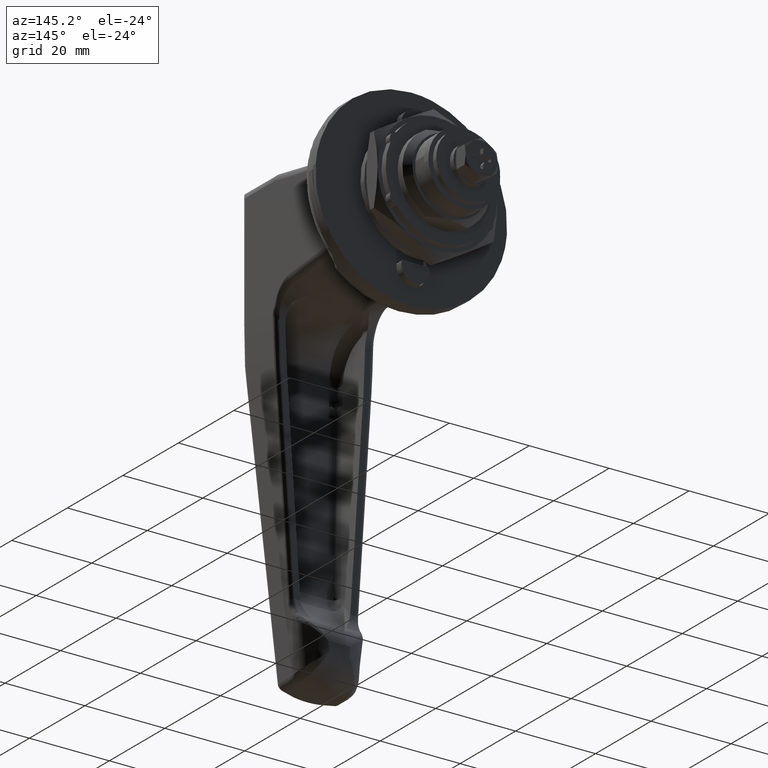
[diagram: clean part render]
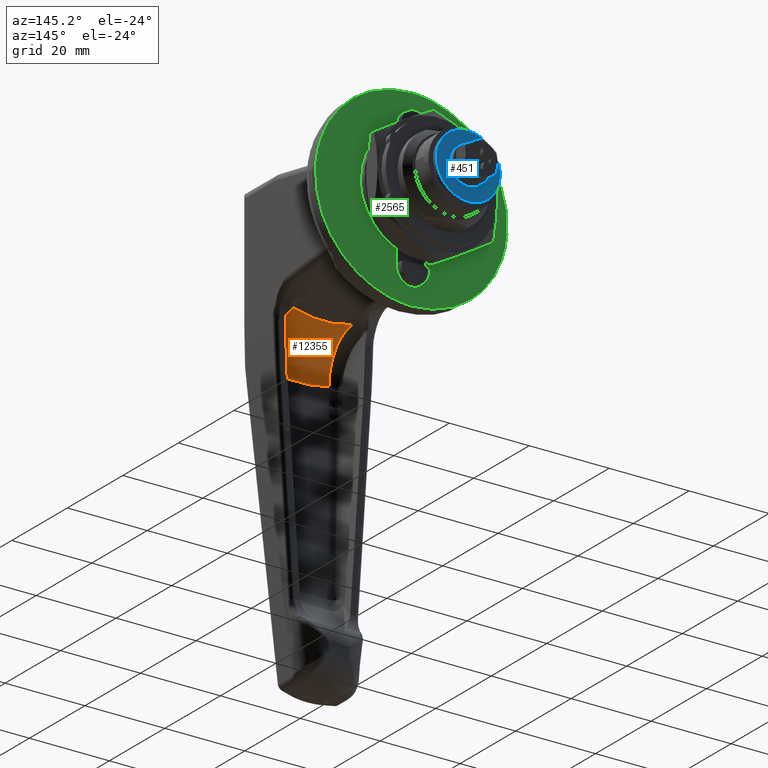
[diagram: same view with three faces highlighted in distinct colors, each labeled with its STEP entity id]
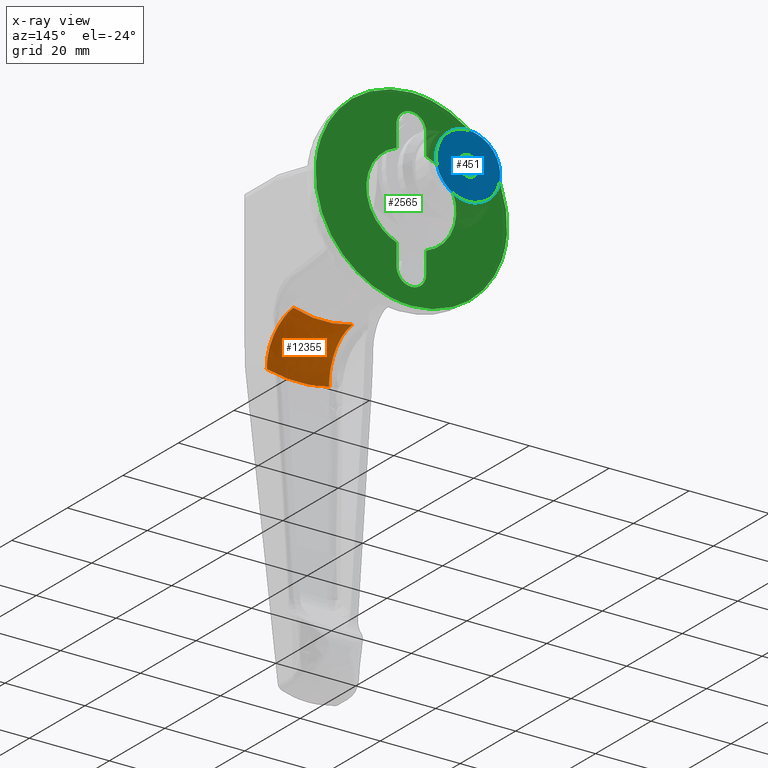
[diagram: x-ray of the same camera — body ghosted, the three highlighted faces saturated]
A machine part, auxiliary view with three faces highlighted in distinct colors.
The next image is the same camera in x-ray (body ghosted, the three faces saturated) — at least one of them is partly hidden behind the body in this view.
Their STEP definitions:

[orange] entity #12355 — the highlighted face is a freeform B-spline surface patch.
#11438=CARTESIAN_POINT('',(-40.825359756270203,7.827575260165380,-25.293235605889549));
#11439=VERTEX_POINT('',#11438);
#11621=CARTESIAN_POINT('',(-31.812009514778559,7.382904629250580,-14.667201120378699));
#11622=VERTEX_POINT('',#11621);
#11640=CARTESIAN_POINT('',(-31.812009514778559,7.382904629250580,-14.667201120378699));
#11641=CARTESIAN_POINT('',(-32.133748025032908,7.384489807200803,-14.698910938858999));
#11642=CARTESIAN_POINT('',(-32.452893654336158,7.387353203197884,-14.746466075777830));
#11643=CARTESIAN_POINT('',(-32.927745212893662,7.393484282610808,-14.841433966328911));
#11644=CARTESIAN_POINT('',(-33.085651579381157,7.395839267305465,-14.877113669601281));
#11645=CARTESIAN_POINT('',(-33.397947730221738,7.401107446914169,-14.955828373912381));
#11646=CARTESIAN_POINT('',(-33.552527738871888,7.404021976324473,-14.998886927158960));
#11647=CARTESIAN_POINT('',(-34.011660493838107,7.413557732517766,-15.138939544571040));
#11648=CARTESIAN_POINT('',(-34.311616371747512,7.420970683074084,-15.246785917218061));
#11649=CARTESIAN_POINT('',(-34.899512853283063,7.437659979636562,-15.490858250846420));
#11650=CARTESIAN_POINT('',(-35.187453090104349,7.446936584932174,-15.627085064576169));
#11651=CARTESIAN_POINT('',(-35.610290791524783,7.462071765562384,-15.852867100460101));
#11652=CARTESIAN_POINT('',(-35.749722048129321,7.467320268480792,-15.931707424468950));
#11653=CARTESIAN_POINT('',(-35.956565718970317,7.475476336115470,-16.055412983432198));
#11654=CARTESIAN_POINT('',(-36.025129570995759,7.478242245512692,-16.097556083338130));
#11655=CARTESIAN_POINT('',(-36.161481885362612,7.483864869517127,-16.183675704902811));
#11656=CARTESIAN_POINT('',(-36.229288932877758,7.486722589597034,-16.227668643211938));
#11657=CARTESIAN_POINT('',(-36.564454342788189,7.501144885537885,-16.450957154357429));
#11658=CARTESIAN_POINT('',(-36.821792194385537,7.513172345996725,-16.641162872783099));
#11659=CARTESIAN_POINT('',(-37.315731200964493,7.537876887151372,-17.043827132022109));
#11660=CARTESIAN_POINT('',(-37.788928392115579,7.563231616647651,-17.468749683063169));
#11661=CARTESIAN_POINT('',(-38.221165510195704,7.589289943401213,-17.937660644229808));
#11662=CARTESIAN_POINT('',(-38.529762867330078,7.608886046574647,-18.306088758561160));
#11663=CARTESIAN_POINT('',(-38.630027584359887,7.615426904820508,-18.431693585534660));
#11664=CARTESIAN_POINT('',(-38.825263405736870,7.628491681301183,-18.688594486295340));
#11665=CARTESIAN_POINT('',(-38.919653336464982,7.634976988159669,-18.819141047107571));
#11666=CARTESIAN_POINT('',(-39.192323352888288,7.654175413162426,-19.215521935118041));
#11667=CARTESIAN_POINT('',(-39.360585743940639,7.666660948034870,-19.486687276367729));
#11668=CARTESIAN_POINT('',(-39.826027686843616,7.702857741249795,-20.320314324537630));
#11669=CARTESIAN_POINT('',(-40.084205256252048,7.725305788378004,-20.902732021766521));
#11670=CARTESIAN_POINT('',(-40.340472851320172,7.750319320942486,-21.664793182635879));
#11671=CARTESIAN_POINT('',(-40.388468110409342,7.755180365205800,-21.819289494177919));
#11672=CARTESIAN_POINT('',(-40.476800535213073,7.764487675588184,-22.128777429865220));
#11673=CARTESIAN_POINT('',(-40.517236545612292,7.768942758642565,-22.284006515481519));
#11674=CARTESIAN_POINT('',(-40.627569131652571,7.781704699558923,-22.751121544042721));
#11675=CARTESIAN_POINT('',(-40.686514134808917,7.789408113560496,-23.064432183591180));
#11676=CARTESIAN_POINT('',(-40.820325590466759,7.810050877222581,-24.009963097523780));
#11677=CARTESIAN_POINT('',(-40.852558041922137,7.820522986583554,-24.647732136243441));
#11678=CARTESIAN_POINT('',(-40.825359756270203,7.827575260165380,-25.293235605889549));
#11679=B_SPLINE_CURVE_WITH_KNOTS('',3,(#11640,#11641,#11642,#11643,#11644,#11645,#11646,#11647,#11648,#11649,#11650,#11651,#11652,#11653,#11654,#11655,#11656,#11657,#11658,#11659,#11660,#11661,#11662,#11663,#11664,#11665,#11666,#11667,#11668,#11669,#11670,#11671,#11672,#11673,#11674,#11675,#11676,#11677,#11678),.UNSPECIFIED.,.F.,.U.,(4,2,2,2,2,2,2,2,2,2,1,2,2,2,2,2,2,2,2,4),(0.0,0.062499999999999,0.093749999999999,0.124999999999998,0.187499999999997,0.249999999999997,0.281249999999996,0.296874999999996,0.312499999999997,0.374999999999997,0.437499999999997,0.499999999999997,0.531249999999997,0.562499999999997,0.624999999999998,0.749999999999999,0.781249999999999,0.812500000000000,0.875000000000000,1.0),.UNSPECIFIED.);
#11680=EDGE_CURVE('',#11622,#11439,#11679,.T.);
#11949=CARTESIAN_POINT('',(-40.825359756270203,-7.827575260165410,-25.293235605889549));
#11950=VERTEX_POINT('',#11949);
#12132=CARTESIAN_POINT('',(-31.812009514778701,-7.382904629259170,-14.667201120375919));
#12133=VERTEX_POINT('',#12132);
#12188=CARTESIAN_POINT('',(-40.825359756270252,-7.827575260165362,-25.293235605889549));
#12189=CARTESIAN_POINT('',(-40.852529589947871,-7.820530363926583,-24.648407393807950));
#12190=CARTESIAN_POINT('',(-40.820566202609633,-7.810024875115288,-24.006983623195779));
#12191=CARTESIAN_POINT('',(-40.706864501845743,-7.792563958881102,-23.209449950297842));
#12192=CARTESIAN_POINT('',(-40.680398518596917,-7.788856032422538,-23.050239457069939));
#12193=CARTESIAN_POINT('',(-40.620489413005473,-7.781076245812965,-22.734825041231069));
#12194=CARTESIAN_POINT('',(-40.587003924303197,-7.776997510125772,-22.578296538648949));
#12195=CARTESIAN_POINT('',(-40.476099469983687,-7.764217295472520,-22.112198324796289));
#12196=CARTESIAN_POINT('',(-40.300410775494612,-7.745725887881040,-21.500018489191589));
#12197=CARTESIAN_POINT('',(-40.069509277954729,-7.724577967341402,-20.906260329578298));
#12198=CARTESIAN_POINT('',(-39.875234680183937,-7.707820083251415,-20.467977362084540));
#12199=CARTESIAN_POINT('',(-39.806954206058933,-7.702084763393725,-20.323057590877770));
#12200=CARTESIAN_POINT('',(-39.663209075309503,-7.690333621747667,-20.035612932426130));
#12201=CARTESIAN_POINT('',(-39.587580160200133,-7.684305629135382,-19.892824987707488));
#12202=CARTESIAN_POINT('',(-39.352011862245106,-7.666012022334219,-19.472225588536450));
#12203=CARTESIAN_POINT('',(-39.013776248275363,-7.640971663054387,-18.929774417885181));
#12204=CARTESIAN_POINT('',(-38.628162453240513,-7.615126729444379,-18.423303502030588));
#12205=CARTESIAN_POINT('',(-38.218672616583383,-7.589139521408146,-17.934951453087379));
#12206=CARTESIAN_POINT('',(-38.001992289595151,-7.576074513967380,-17.699832893952919));
#12207=CARTESIAN_POINT('',(-37.658430348534452,-7.556585735111536,-17.361214623862139));
#12208=CARTESIAN_POINT('',(-37.540669661765172,-7.550101282602617,-17.250588624770050));
#12209=CARTESIAN_POINT('',(-37.301341434045753,-7.537340881482384,-17.036342153163449));
#12210=CARTESIAN_POINT('',(-37.179494773899123,-7.531048574052822,-16.932432329714050));
#12211=CARTESIAN_POINT('',(-36.807485859982407,-7.512488047776656,-16.630223664007111));
#12212=CARTESIAN_POINT('',(-36.550869059587612,-7.500535755956782,-16.441424437285129));
#12213=CARTESIAN_POINT('',(-36.020477712203181,-7.477762918481962,-16.089059701908312));
#12214=CARTESIAN_POINT('',(-35.746703908397670,-7.466941996615193,-15.925493121059951));
#12215=CARTESIAN_POINT('',(-35.322869990756907,-7.451790204280999,-15.699503562191421));
#12216=CARTESIAN_POINT('',(-35.179392752995220,-7.446919724401992,-15.627405917310741));
#12217=CARTESIAN_POINT('',(-34.960803630721607,-7.439915210426696,-15.524215473342689));
#12218=CARTESIAN_POINT('',(-34.887356229436541,-7.437630158531755,-15.490638918098300));
#12219=CARTESIAN_POINT('',(-34.740132323526922,-7.433189455524685,-15.425506321668131));
#12220=CARTESIAN_POINT('',(-34.666257600961693,-7.431030580464496,-15.393902695791519));
#12221=CARTESIAN_POINT('',(-34.295581825297610,-7.420550188288139,-15.240654497719520));
#12222=CARTESIAN_POINT('',(-33.694185004563678,-7.405791106692171,-15.025917747682319));
#12223=CARTESIAN_POINT('',(-33.076457366212701,-7.395388863716572,-14.870974272612200));
#12224=CARTESIAN_POINT('',(-32.450489676995062,-7.387337990345618,-14.746190548579550));
#12225=CARTESIAN_POINT('',(-32.133386690216277,-7.384488026935276,-14.698875326518269));
#12226=CARTESIAN_POINT('',(-31.812009514778801,-7.382904629259170,-14.667201120375919));
#12227=B_SPLINE_CURVE_WITH_KNOTS('',3,(#12188,#12189,#12190,#12191,#12192,#12193,#12194,#12195,#12196,#12197,#12198,#12199,#12200,#12201,#12202,#12203,#12204,#12205,#12206,#12207,#12208,#12209,#12210,#12211,#12212,#12213,#12214,#12215,#12216,#12217,#12218,#12219,#12220,#12221,#12222,#12223,#12224,#12225,#12226),.UNSPECIFIED.,.F.,.U.,(4,2,2,2,1,2,2,2,1,2,2,2,2,2,2,2,2,2,1,2,4),(0.0,0.124999999999997,0.156249999999995,0.187499999999994,0.249999999999992,0.312499999999990,0.343749999999990,0.374999999999989,0.437499999999989,0.499999999999989,0.562499999999989,0.593749999999990,0.624999999999990,0.687499999999993,0.749999999999995,0.781249999999997,0.796874999999997,0.812499999999997,0.874999999999998,0.937499999999999,1.0),.UNSPECIFIED.);
#12228=EDGE_CURVE('',#11950,#12133,#12227,.T.);
#12233=CARTESIAN_POINT('',(-31.745413127194460,-7.466910346608826,-14.632988686826209));
#12234=CARTESIAN_POINT('',(-31.724110247814927,-6.269361143150593,-15.025938892908698));
#12235=CARTESIAN_POINT('',(-31.705648072891712,-5.046605697200515,-15.322867648962948));
#12236=CARTESIAN_POINT('',(-31.686454721669563,-3.174404503301943,-15.623335010354468));
#12237=CARTESIAN_POINT('',(-31.681452593555466,-2.543959755078718,-15.699225344157483));
#12238=CARTESIAN_POINT('',(-31.674708495164762,-1.269877287298596,-15.800878503471518));
#12239=CARTESIAN_POINT('',(-31.673014686084937,-0.634969448344535,-15.825937090082043));
#12240=CARTESIAN_POINT('',(-31.673001953662030,1.262753615766429,-15.826126644884132));
#12241=CARTESIAN_POINT('',(-31.679836673225946,2.518980766109065,-15.726765434138391));
#12242=CARTESIAN_POINT('',(-31.698868849589584,4.390079119513899,-15.429078215003674));
#12243=CARTESIAN_POINT('',(-31.706654999843270,5.011560822176806,-15.304958244633401));
#12244=CARTESIAN_POINT('',(-31.724583142816940,6.249976905533970,-15.005564243479506));
#12245=CARTESIAN_POINT('',(-31.734735866183637,6.866714107493562,-14.829945146791250));
#12246=CARTESIAN_POINT('',(-31.745422154236927,7.467417784104113,-14.632822175750203));
#12247=CARTESIAN_POINT('',(-31.779416094032591,-7.467538683560845,-14.636191437893576));
#12248=CARTESIAN_POINT('',(-31.758175238959851,-6.269852999306590,-15.029170280593137));
#12249=CARTESIAN_POINT('',(-31.739762948059880,-5.046983561752350,-15.326110910100212));
#12250=CARTESIAN_POINT('',(-31.720620577980018,-3.174630888114090,-15.626587917045033));
#12251=CARTESIAN_POINT('',(-31.715631507305734,-2.544138827765635,-15.702480011157318));
#12252=CARTESIAN_POINT('',(-31.708904937065864,-1.269964741744247,-15.804135328474372));
#12253=CARTESIAN_POINT('',(-31.707215489808132,-0.635013173653010,-15.829194308349683));
#12254=CARTESIAN_POINT('',(-31.707202790255774,1.262840571514010,-15.829383866479770));
#12255=CARTESIAN_POINT('',(-31.714020034317954,2.519154464758785,-15.730021603928133));
#12256=CARTESIAN_POINT('',(-31.733001767981417,4.390403698218419,-15.432324913346566));
#12257=CARTESIAN_POINT('',(-31.740767027929646,5.011939197499494,-15.308200329189669));
#12258=CARTESIAN_POINT('',(-31.758645808037638,6.250472897597136,-15.008791568946252));
#12259=CARTESIAN_POINT('',(-31.768769961042420,6.867273992469793,-14.833162262643890));
#12260=CARTESIAN_POINT('',(-31.779425094701590,7.468046178939694,-14.636024914671928));
#12261=CARTESIAN_POINT('',(-41.197931225763632,-7.641582352119719,-15.523324597029683));
#12262=CARTESIAN_POINT('',(-41.209415773790340,-6.406317172131024,-15.925710136922699));
#12263=CARTESIAN_POINT('',(-41.217306187733158,-5.151959107202378,-16.227129820896508));
#12264=CARTESIAN_POINT('',(-41.225146043869849,-3.237608388007852,-16.531506974183610));
#12265=CARTESIAN_POINT('',(-41.227078634590654,-2.593971903386698,-16.608201980910923));
#12266=CARTESIAN_POINT('',(-41.229654358134177,-1.294313235812898,-16.710879218676009));
#12267=CARTESIAN_POINT('',(-41.230279881593411,-0.647188294785328,-16.736152505936769));
#12268=CARTESIAN_POINT('',(-41.230284637576432,1.287053040675328,-16.736343781481885));
#12269=CARTESIAN_POINT('',(-41.227841304224640,2.567497806532322,-16.636270036334384));
#12270=CARTESIAN_POINT('',(-41.220079123064657,4.480618758128046,-16.334728803164101));
#12271=CARTESIAN_POINT('',(-41.216797127755420,5.117048630973297,-16.208823732861500));
#12272=CARTESIAN_POINT('',(-41.208607463121687,6.388075341439732,-15.904144346294039));
#12273=CARTESIAN_POINT('',(-41.203687663502699,7.022485074049665,-15.725009788924613));
#12274=CARTESIAN_POINT('',(-41.197926359292943,7.642105759456569,-15.523154091510527));
#12275=CARTESIAN_POINT('',(-40.856989256808617,-10.597467523847474,-24.505120978755450));
#12276=CARTESIAN_POINT('',(-40.834557998794587,-8.898033464105239,-25.093492710154152));
#12277=CARTESIAN_POINT('',(-40.815117012671436,-7.162684484655468,-25.538212050235860));
#12278=CARTESIAN_POINT('',(-40.794905955309275,-4.505519798013812,-25.988254006263439));
#12279=CARTESIAN_POINT('',(-40.789638543638709,-3.610725998454679,-26.101930923565536));
#12280=CARTESIAN_POINT('',(-40.782536749177261,-1.802390345118244,-26.254200479620351));
#12281=CARTESIAN_POINT('',(-40.780753097742164,-0.901238784050039,-26.291738197785630));
#12282=CARTESIAN_POINT('',(-40.780739689968200,1.792279195564273,-26.292022146326293));
#12283=CARTESIAN_POINT('',(-40.787936927015025,3.575295000907547,-26.143172997785662));
#12284=CARTESIAN_POINT('',(-40.807978360729770,6.230893783234150,-25.697294814499095));
#12285=CARTESIAN_POINT('',(-40.816177318185666,7.112925793318444,-25.511394457567629));
#12286=CARTESIAN_POINT('',(-40.835055721911147,8.870481814776657,-25.063020328786479));
#12287=CARTESIAN_POINT('',(-40.845746314182755,9.745720099918133,-24.800032077623072));
#12288=CARTESIAN_POINT('',(-40.856998761964256,10.598187631818433,-24.504871656181962));
#12289=CARTESIAN_POINT('',(-40.855757546989480,-10.608146152827425,-24.537569218643544));
#12290=CARTESIAN_POINT('',(-40.833205989894630,-8.907020399491298,-25.126558380545450));
#12291=CARTESIAN_POINT('',(-40.813668334388439,-7.169927081841084,-25.571750403461731));
#12292=CARTESIAN_POINT('',(-40.793358328290168,-4.510080632785179,-26.022271099530016));
#12293=CARTESIAN_POINT('',(-40.788065561475207,-3.614382124377488,-26.136069235532741));
#12294=CARTESIAN_POINT('',(-40.780929714991167,-1.804216480496222,-26.288501171894875));
#12295=CARTESIAN_POINT('',(-40.779137591204332,-0.902151789105794,-26.326079001743960));
#12296=CARTESIAN_POINT('',(-40.779124119562127,1.794094872569564,-26.326363253391133));
#12297=CARTESIAN_POINT('',(-40.786355272540838,3.578918485974184,-26.177354598114615));
#12298=CARTESIAN_POINT('',(-40.806494688534244,6.237195238185495,-25.731002538772792));
#12299=CARTESIAN_POINT('',(-40.814734182753405,7.120115455393747,-25.544904706196171));
#12300=CARTESIAN_POINT('',(-40.833708333187843,8.879435772474464,-25.096056090249210));
#12301=CARTESIAN_POINT('',(-40.844454257625522,9.755550128437678,-24.832790075763516));
#12302=CARTESIAN_POINT('',(-40.855767103206936,10.608866978852699,-24.537319633937116));
#12310=(BOUNDED_SURFACE()B_SPLINE_SURFACE(3,2,((#12233,#12247,#12261,#12275,#12289),(#12234,#12248,#12262,#12276,#12290),(#12235,#12249,#12263,#12277,#12291),(#12236,#12250,#12264,#12278,#12292),(#12237,#12251,#12265,#12279,#12293),(#12238,#12252,#12266,#12280,#12294),(#12239,#12253,#12267,#12281,#12295),(#12240,#12254,#12268,#12282,#12296),(#12241,#12255,#12269,#12283,#12297),(#12242,#12256,#12270,#12284,#12298),(#12243,#12257,#12271,#12285,#12299),(#12244,#12258,#12272,#12286,#12300),(#12245,#12259,#12273,#12287,#12301),(#12246,#12260,#12274,#12288,#12302)),.UNSPECIFIED.,.F.,.F.,.U.)B_SPLINE_SURFACE_WITH_KNOTS((4,2,2,2,2,2,4),(3,1,1,3),(0.0,5.449651486164336,8.174477229246504,10.899302972328670,16.348954458493012,19.073780201575179,21.798605944657339),(0.0,0.080043975375321,16.088718683535170,16.168817203720600),.UNSPECIFIED.)GEOMETRIC_REPRESENTATION_ITEM()RATIONAL_B_SPLINE_SURFACE(((1.002723755867685,1.001361877933842,0.727626461168698,1.001362805965876,1.002725611931753),(1.002735637746444,1.001367818873222,0.726438282226496,1.001368750953623,1.002737501907247),(1.002745121518396,1.001372560759198,0.725489912161955,1.001373496070889,1.002746992141778),(1.002754836286093,1.001377418143047,0.724518442696547,1.001378356764732,1.002756713529464),(1.002757323861087,1.001378661930544,0.724269687067513,1.001379601399790,1.002759202799580),(1.002760665591508,1.001380332795754,0.723935516537999,1.001381273403587,1.002762546807174),(1.002761496253984,1.001380748126992,0.723852450914965,1.001381689017847,1.002763378035693),(1.002761502519844,1.001380751259922,0.723851824333672,1.001381692152912,1.002763384305823),(1.002758182874257,1.001379091437128,0.724183786396455,1.001380031199056,1.002760062398111),(1.002748554357509,1.001374277178755,0.725146630831716,1.001375213660075,1.002750427320150),(1.002744572577831,1.001372286288915,0.725544805805737,1.001373221413573,1.002746442827145),(1.002735154216512,1.001367577108256,0.726486634856114,1.001368509023910,1.002737018047821),(1.002729713002993,1.001364856501497,0.727030752116877,1.001365786563233,1.002731573126465),(1.002723750834741,1.001361875417371,0.727626964459243,1.001362803447690,1.002725606895380)))REPRESENTATION_ITEM('')SURFACE());
#12311=CARTESIAN_POINT('',(-31.812009514778591,7.382904629250580,-14.667201120378699));
#12312=CARTESIAN_POINT('',(-31.806754729762591,7.083561595264651,-14.764173418831991));
#12313=CARTESIAN_POINT('',(-31.801664824974068,6.782123492833700,-14.855295260424990));
#12314=CARTESIAN_POINT('',(-31.791922105842609,6.175033660008601,-15.025777787178001));
#12315=CARTESIAN_POINT('',(-31.787266927986479,5.869146148828927,-15.105172804853099));
#12316=CARTESIAN_POINT('',(-31.774185888687580,4.951249677149717,-15.324203266812340));
#12317=CARTESIAN_POINT('',(-31.766617837985141,4.337089586829030,-15.445299844357841));
#12318=CARTESIAN_POINT('',(-31.754289758865841,3.104422969221807,-15.638930200425120));
#12319=CARTESIAN_POINT('',(-31.744768241348751,1.867409462973651,-15.783992602001261));
#12320=CARTESIAN_POINT('',(-31.741500866108598,0.621760089024332,-15.832608275277259));
#12321=CARTESIAN_POINT('',(-31.741512180908821,-0.628258146861777,-15.832438940986689));
#12322=CARTESIAN_POINT('',(-31.743157609624070,-1.255451418622431,-15.807964904282670));
#12323=CARTESIAN_POINT('',(-31.749709488377029,-2.514341976014428,-15.708715245472630));
#12324=CARTESIAN_POINT('',(-31.754571333677230,-3.137626720459240,-15.634594284686941));
#12325=CARTESIAN_POINT('',(-31.767016417959869,-4.371608466077708,-15.438948078075351));
#12326=CARTESIAN_POINT('',(-31.782183722813858,-5.593224120579549,-15.195873765312321));
#12327=CARTESIAN_POINT('',(-31.801609044564341,-6.790433519717006,-14.859132378954151));
#12328=CARTESIAN_POINT('',(-31.812009514778701,-7.382904629259167,-14.667201120375919));
#12329=B_SPLINE_CURVE_WITH_KNOTS('',3,(#12311,#12312,#12313,#12314,#12315,#12316,#12317,#12318,#12319,#12320,#12321,#12322,#12323,#12324,#12325,#12326,#12327,#12328),.UNSPECIFIED.,.F.,.U.,(4,2,2,2,1,2,2,2,1,4),(0.0,0.062500000000000,0.125000000000000,0.250000000000000,0.375000000000000,0.500000000000000,0.625000000000000,0.750000000000000,0.875000000000000,1.0),.UNSPECIFIED.);
#12330=EDGE_CURVE('',#11622,#12133,#12329,.T.);
#12331=ORIENTED_EDGE('',*,*,#12330,.T.);
#12332=ORIENTED_EDGE('',*,*,#12228,.F.);
#12333=CARTESIAN_POINT('',(-40.825359756270238,-7.827575260165406,-25.293235605889539));
#12334=CARTESIAN_POINT('',(-40.811821056672500,-6.541401968867144,-25.614552827007490));
#12335=CARTESIAN_POINT('',(-40.800890084982463,-5.239368933864738,-25.856399372553941));
#12336=CARTESIAN_POINT('',(-40.791637335939619,-3.591783461792982,-26.058317111665708));
#12337=CARTESIAN_POINT('',(-40.790005285524792,-3.261260899970748,-26.093664698832612));
#12338=CARTESIAN_POINT('',(-40.787900479235823,-2.763954748277005,-26.139062011897110));
#12339=CARTESIAN_POINT('',(-40.787255811372653,-2.597838836986929,-26.152928938989710));
#12340=CARTESIAN_POINT('',(-40.786086432416219,-2.266119183551184,-26.178035985243351));
#12341=CARTESIAN_POINT('',(-40.785561199463750,-2.100407814418808,-26.189287395123479));
#12342=CARTESIAN_POINT('',(-40.783233168652913,-1.272587180466305,-26.239087313181660));
#12343=CARTESIAN_POINT('',(-40.782326945280218,-0.612684455747640,-26.258282931713190));
#12344=CARTESIAN_POINT('',(-40.782456366829130,1.360143966317092,-26.255531838215180));
#12345=CARTESIAN_POINT('',(-40.786365682164210,2.666212698403283,-26.173448525853068));
#12346=CARTESIAN_POINT('',(-40.801084470493237,5.260426605302539,-25.852063459370441));
#12347=CARTESIAN_POINT('',(-40.811896528344640,6.548571760047144,-25.612761639619642));
#12348=CARTESIAN_POINT('',(-40.825359756270238,7.827575260165377,-25.293235605889539));
#12349=B_SPLINE_CURVE_WITH_KNOTS('',3,(#12333,#12334,#12335,#12336,#12337,#12338,#12339,#12340,#12341,#12342,#12343,#12344,#12345,#12346,#12347,#12348),.UNSPECIFIED.,.F.,.U.,(4,2,2,2,2,2,2,4),(0.0,0.250000000000000,0.312500000000000,0.343750000000000,0.375000000000000,0.500000000000000,0.750000000000000,1.0),.UNSPECIFIED.);
#12350=EDGE_CURVE('',#11950,#11439,#12349,.T.);
#12351=ORIENTED_EDGE('',*,*,#12350,.T.);
#12352=ORIENTED_EDGE('',*,*,#11680,.F.);
#12353=EDGE_LOOP('',(#12331,#12332,#12351,#12352));
#12354=FACE_OUTER_BOUND('',#12353,.T.);
#12355=ADVANCED_FACE('',(#12354),#12310,.F.);

[blue] entity #451 — the highlighted face is a freeform B-spline surface patch.
#85=CARTESIAN_POINT('',(125.096787000000010,7.944076210905161,0.944273877289150));
#86=VERTEX_POINT('',#85);
#92=CARTESIAN_POINT('',(125.096787000000010,0.0,-8.0));
#93=VERTEX_POINT('',#92);
#94=CARTESIAN_POINT('',(125.096787000000010,7.944076210905161,0.944273877289150));
#95=CARTESIAN_POINT('',(125.096786999999980,8.0,0.473792957250734));
#96=CARTESIAN_POINT('',(125.096787000000010,8.0,0.0));
#97=CARTESIAN_POINT('',(125.096786999999990,8.0,-8.0));
#98=CARTESIAN_POINT('',(125.096787000000010,0.0,-8.0));
#106=(BOUNDED_CURVE()B_SPLINE_CURVE(2,(#94,#95,#96,#97,#98),.UNSPECIFIED.,.F.,.U.)B_SPLINE_CURVE_WITH_KNOTS((3,2,3),(0.229562473514151,0.250000000000000,0.500000000000000),.UNSPECIFIED.)CURVE()GEOMETRIC_REPRESENTATION_ITEM()RATIONAL_B_SPLINE_CURVE((0.956026754184960,0.976055948331899,1.0,0.707106781186548,1.0))REPRESENTATION_ITEM(''));
#107=EDGE_CURVE('',#86,#93,#106,.T.);
#109=CARTESIAN_POINT('',(125.096787000000010,-7.985078387357856,-0.488388316558104));
#110=VERTEX_POINT('',#109);
#111=CARTESIAN_POINT('',(125.096787000000010,0.0,-8.0));
#112=CARTESIAN_POINT('',(125.096786999999980,-7.525648534718171,-8.0));
#113=CARTESIAN_POINT('',(125.096787000000020,-7.985078387357857,-0.488388316558104));
#121=(BOUNDED_CURVE()B_SPLINE_CURVE(2,(#111,#112,#113),.UNSPECIFIED.,.F.,.U.)B_SPLINE_CURVE_WITH_KNOTS((3,3),(0.500000000000000,0.739332962229899),.UNSPECIFIED.)CURVE()GEOMETRIC_REPRESENTATION_ITEM()RATIONAL_B_SPLINE_CURVE((1.0,0.719603993297306,0.976072041647335))REPRESENTATION_ITEM(''));
#122=EDGE_CURVE('',#93,#110,#121,.T.);
#196=CARTESIAN_POINT('',(125.096787000000010,0.0,8.0));
#197=VERTEX_POINT('',#196);
#198=CARTESIAN_POINT('',(125.096787000000030,-7.985078387357856,-0.488388316558104));
#199=CARTESIAN_POINT('',(125.096786999999990,-8.0,-0.244422106668742));
#200=CARTESIAN_POINT('',(125.096787000000010,-8.0,0.0));
#201=CARTESIAN_POINT('',(125.096786999999990,-8.0,8.0));
#202=CARTESIAN_POINT('',(125.096787000000010,0.0,8.0));
#210=(BOUNDED_CURVE()B_SPLINE_CURVE(2,(#198,#199,#200,#201,#202),.UNSPECIFIED.,.F.,.U.)B_SPLINE_CURVE_WITH_KNOTS((3,2,3),(0.739332962229900,0.750000000000000,1.0),.UNSPECIFIED.)CURVE()GEOMETRIC_REPRESENTATION_ITEM()RATIONAL_B_SPLINE_CURVE((0.976072041647337,0.987502787889243,1.0,0.707106781186548,1.0))REPRESENTATION_ITEM(''));
#211=EDGE_CURVE('',#110,#197,#210,.T.);
#213=CARTESIAN_POINT('',(125.096787000000010,0.0,8.0));
#214=CARTESIAN_POINT('',(125.096786999999990,7.105396207547743,8.0));
#215=CARTESIAN_POINT('',(125.096786999999990,7.944076210905161,0.944273877289150));
#223=(BOUNDED_CURVE()B_SPLINE_CURVE(2,(#213,#214,#215),.UNSPECIFIED.,.F.,.U.)B_SPLINE_CURVE_WITH_KNOTS((3,3),(0.0,0.229562473514152),.UNSPECIFIED.)CURVE()GEOMETRIC_REPRESENTATION_ITEM()RATIONAL_B_SPLINE_CURVE((1.0,0.731050832854649,0.956026754184960))REPRESENTATION_ITEM(''));
#224=EDGE_CURVE('',#197,#86,#223,.T.);
#286=CARTESIAN_POINT('',(125.096787000000010,-2.495336996046119,-0.152621348976916));
#287=VERTEX_POINT('',#286);
#293=CARTESIAN_POINT('',(125.096787000000010,0.0,-2.500000000000000));
#294=VERTEX_POINT('',#293);
#295=CARTESIAN_POINT('',(125.096787000000010,0.0,-2.500000000000000));
#296=CARTESIAN_POINT('',(125.096786999999990,-2.351765167000279,-2.500000000000000));
#297=CARTESIAN_POINT('',(125.096787000000020,-2.495336996046118,-0.152621348976916));
#305=(BOUNDED_CURVE()B_SPLINE_CURVE(2,(#295,#296,#297),.UNSPECIFIED.,.F.,.U.)B_SPLINE_CURVE_WITH_KNOTS((3,3),(0.500000000000000,0.739332962222638),.UNSPECIFIED.)CURVE()GEOMETRIC_REPRESENTATION_ITEM()RATIONAL_B_SPLINE_CURVE((1.0,0.719603993305812,0.976072041631773))REPRESENTATION_ITEM(''));
#306=EDGE_CURVE('',#294,#287,#305,.T.);
#308=CARTESIAN_POINT('',(125.096787000000010,2.482524083609847,0.295083334486963));
#309=VERTEX_POINT('',#308);
#310=CARTESIAN_POINT('',(125.096787000000030,2.482524083609847,0.295083334486963));
#311=CARTESIAN_POINT('',(125.096787000000010,2.500000000000000,0.148059161147715));
#312=CARTESIAN_POINT('',(125.096787000000010,2.500000000000000,0.0));
#313=CARTESIAN_POINT('',(125.096786999999990,2.500000000000000,-2.500000000000000));
#314=CARTESIAN_POINT('',(125.096787000000010,0.0,-2.500000000000000));
#322=(BOUNDED_CURVE()B_SPLINE_CURVE(2,(#310,#311,#312,#313,#314),.UNSPECIFIED.,.F.,.U.)B_SPLINE_CURVE_WITH_KNOTS((3,2,3),(0.229562626836035,0.250000000000000,0.500000000000000),.UNSPECIFIED.)CURVE()GEOMETRIC_REPRESENTATION_ITEM()RATIONAL_B_SPLINE_CURVE((0.956027054702347,0.976056127959659,1.0,0.707106781186548,1.0))REPRESENTATION_ITEM(''));
#323=EDGE_CURVE('',#309,#294,#322,.T.);
#367=CARTESIAN_POINT('',(125.096787000000010,0.0,2.500000000000000));
#368=VERTEX_POINT('',#367);
#369=CARTESIAN_POINT('',(125.096787000000010,0.0,2.500000000000000));
#370=CARTESIAN_POINT('',(125.096786999999990,2.220438343447841,2.500000000000000));
#371=CARTESIAN_POINT('',(125.096787000000030,2.482524083609847,0.295083334486963));
#379=(BOUNDED_CURVE()B_SPLINE_CURVE(2,(#369,#370,#371),.UNSPECIFIED.,.F.,.U.)B_SPLINE_CURVE_WITH_KNOTS((3,3),(0.0,0.229562626836035),.UNSPECIFIED.)CURVE()GEOMETRIC_REPRESENTATION_ITEM()RATIONAL_B_SPLINE_CURVE((1.0,0.731050653226889,0.956027054702347))REPRESENTATION_ITEM(''));
#380=EDGE_CURVE('',#368,#309,#379,.T.);
#382=CARTESIAN_POINT('',(125.096786999999990,-2.495336996046119,-0.152621348976916));
#383=CARTESIAN_POINT('',(125.096786999999990,-2.500000000000000,-0.076381908386638));
#384=CARTESIAN_POINT('',(125.096787000000010,-2.500000000000000,0.0));
#385=CARTESIAN_POINT('',(125.096786999999990,-2.500000000000000,2.500000000000000));
#386=CARTESIAN_POINT('',(125.096787000000010,0.0,2.500000000000000));
#394=(BOUNDED_CURVE()B_SPLINE_CURVE(2,(#382,#383,#384,#385,#386),.UNSPECIFIED.,.F.,.U.)B_SPLINE_CURVE_WITH_KNOTS((3,2,3),(0.739332962222638,0.750000000000000,1.0),.UNSPECIFIED.)CURVE()GEOMETRIC_REPRESENTATION_ITEM()RATIONAL_B_SPLINE_CURVE((0.976072041631774,0.987502787880735,1.0,0.707106781186548,1.0))REPRESENTATION_ITEM(''));
#395=EDGE_CURVE('',#287,#368,#394,.T.);
#434=CARTESIAN_POINT('',(125.096787000000010,-8.799005256099443,8.799199968988896));
#435=CARTESIAN_POINT('',(125.096787000000010,-8.799005256099443,-8.799200398142338));
#436=CARTESIAN_POINT('',(125.096787000000010,8.799054465694168,8.799199968988896));
#437=CARTESIAN_POINT('',(125.096787000000010,8.799054465694168,-8.799200398142338));
#438=B_SPLINE_SURFACE_WITH_KNOTS('',1,1,((#434,#436),(#435,#437)),.UNSPECIFIED.,.F.,.F.,.U.,(2,2),(2,2),(0.0,17.598400367131230),(0.0,17.598059721793611),.UNSPECIFIED.);
#439=ORIENTED_EDGE('',*,*,#211,.F.);
#440=ORIENTED_EDGE('',*,*,#122,.F.);
#441=ORIENTED_EDGE('',*,*,#107,.F.);
#442=ORIENTED_EDGE('',*,*,#224,.F.);
#443=EDGE_LOOP('',(#439,#440,#441,#442));
#444=FACE_OUTER_BOUND('',#443,.T.);
#445=ORIENTED_EDGE('',*,*,#306,.T.);
#446=ORIENTED_EDGE('',*,*,#395,.T.);
#447=ORIENTED_EDGE('',*,*,#380,.T.);
#448=ORIENTED_EDGE('',*,*,#323,.T.);
#449=EDGE_LOOP('',(#445,#446,#447,#448));
#450=FACE_BOUND('',#449,.T.);
#451=ADVANCED_FACE('',(#444,#450),#438,.T.);

[green] entity #2565 — the highlighted face is a freeform B-spline surface patch.
#2195=CARTESIAN_POINT('',(-2.255141E-017,-23.926018432789849,1.882983524670908));
#2196=VERTEX_POINT('',#2195);
#2202=CARTESIAN_POINT('',(0.0,0.000000313432878,24.0));
#2203=VERTEX_POINT('',#2202);
#2204=CARTESIAN_POINT('',(0.0,0.000000313432878,24.0));
#2205=CARTESIAN_POINT('',(0.0,-22.185403829121775,24.000000000000007));
#2206=CARTESIAN_POINT('',(-2.255141E-017,-23.926018432789842,1.882983524670908));
#2214=(BOUNDED_CURVE()B_SPLINE_CURVE(2,(#2204,#2205,#2206),.UNSPECIFIED.,.F.,.U.)B_SPLINE_CURVE_WITH_KNOTS((3,3),(0.0,0.236331549772029),.UNSPECIFIED.)CURVE()GEOMETRIC_REPRESENTATION_ITEM()RATIONAL_B_SPLINE_CURVE((1.0,0.723120366720395,0.969723876107031))REPRESENTATION_ITEM(''));
#2215=EDGE_CURVE('',#2203,#2196,#2214,.T.);
#2217=CARTESIAN_POINT('',(-2.255141E-017,23.926019059655601,-1.882983524670904));
#2218=VERTEX_POINT('',#2217);
#2219=CARTESIAN_POINT('',(-2.255141E-017,23.926019059655598,-1.882983524670904));
#2220=CARTESIAN_POINT('',(0.0,24.000000313432878,-0.942945101103090));
#2221=CARTESIAN_POINT('',(0.0,24.000000313432881,1.919159E-023));
#2222=CARTESIAN_POINT('',(0.0,24.000000313432871,23.999999999999996));
#2223=CARTESIAN_POINT('',(0.0,0.000000313432878,24.0));
#2231=(BOUNDED_CURVE()B_SPLINE_CURVE(2,(#2219,#2220,#2221,#2222,#2223),.UNSPECIFIED.,.F.,.U.)B_SPLINE_CURVE_WITH_KNOTS((3,2,3),(0.736331549772029,0.750000000000000,1.0),.UNSPECIFIED.)CURVE()GEOMETRIC_REPRESENTATION_ITEM()RATIONAL_B_SPLINE_CURVE((0.969723876107031,0.983986414466153,1.0,0.707106781186548,1.0))REPRESENTATION_ITEM(''));
#2232=EDGE_CURVE('',#2218,#2203,#2231,.T.);
#2312=CARTESIAN_POINT('',(0.0,0.000000313432878,-24.0));
#2313=VERTEX_POINT('',#2312);
#2314=CARTESIAN_POINT('',(0.0,0.000000313432878,-24.0));
#2315=CARTESIAN_POINT('',(0.0,22.185404455987538,-24.000000000000007));
#2316=CARTESIAN_POINT('',(-2.255141E-017,23.926019059655598,-1.882983524670904));
#2324=(BOUNDED_CURVE()B_SPLINE_CURVE(2,(#2314,#2315,#2316),.UNSPECIFIED.,.F.,.U.)B_SPLINE_CURVE_WITH_KNOTS((3,3),(0.500000000000000,0.736331549772029),.UNSPECIFIED.)CURVE()GEOMETRIC_REPRESENTATION_ITEM()RATIONAL_B_SPLINE_CURVE((1.0,0.723120366720395,0.969723876107031))REPRESENTATION_ITEM(''));
#2325=EDGE_CURVE('',#2313,#2218,#2324,.T.);
#2327=CARTESIAN_POINT('',(-2.255141E-017,-23.926018432789842,1.882983524670908));
#2328=CARTESIAN_POINT('',(0.0,-23.999999686567119,0.942945101103092));
#2329=CARTESIAN_POINT('',(0.0,-23.999999686567119,1.919159E-023));
#2330=CARTESIAN_POINT('',(0.0,-23.999999686567126,-23.999999999999996));
#2331=CARTESIAN_POINT('',(0.0,0.000000313432878,-24.0));
#2339=(BOUNDED_CURVE()B_SPLINE_CURVE(2,(#2327,#2328,#2329,#2330,#2331),.UNSPECIFIED.,.F.,.U.)B_SPLINE_CURVE_WITH_KNOTS((3,2,3),(0.236331549772029,0.250000000000000,0.500000000000000),.UNSPECIFIED.)CURVE()GEOMETRIC_REPRESENTATION_ITEM()RATIONAL_B_SPLINE_CURVE((0.969723876107031,0.983986414466153,1.0,0.707106781186548,1.0))REPRESENTATION_ITEM(''));
#2340=EDGE_CURVE('',#2196,#2313,#2339,.T.);
#2456=CARTESIAN_POINT('',(0.0,-26.390274202601141,26.397599906966690));
#2457=CARTESIAN_POINT('',(0.0,26.390275687773769,26.397599906966690));
#2458=CARTESIAN_POINT('',(0.0,-26.390274202601141,-26.397601194427011));
#2459=CARTESIAN_POINT('',(0.0,26.390275687773769,-26.397601194427011));
#2460=B_SPLINE_SURFACE_WITH_KNOTS('',1,1,((#2456,#2458),(#2457,#2459)),.UNSPECIFIED.,.F.,.F.,.U.,(2,2),(2,2),(0.0,52.780549890374907),(0.0,52.795201101393701),.UNSPECIFIED.);
#2461=ORIENTED_EDGE('',*,*,#2215,.T.);
#2462=ORIENTED_EDGE('',*,*,#2340,.T.);
#2463=ORIENTED_EDGE('',*,*,#2325,.T.);
#2464=ORIENTED_EDGE('',*,*,#2232,.T.);
#2465=EDGE_LOOP('',(#2461,#2462,#2463,#2464));
#2466=FACE_OUTER_BOUND('',#2465,.T.);
#2467=CARTESIAN_POINT('',(0.0,-3.700000000000000,10.624146915427920));
#2468=VERTEX_POINT('',#2467);
#2469=CARTESIAN_POINT('',(0.0,-3.700000000000000,-10.624146915427920));
#2470=VERTEX_POINT('',#2469);
#2471=CARTESIAN_POINT('',(0.0,-3.700000000000004,10.624146915427920));
#2472=CARTESIAN_POINT('',(0.0,-11.249999686567117,7.994759216905932));
#2473=CARTESIAN_POINT('',(0.0,-11.249999686567120,1.919159E-023));
#2474=CARTESIAN_POINT('',(0.0,-11.249999686567117,-7.994759216905935));
#2475=CARTESIAN_POINT('',(0.0,-3.700000000000001,-10.624146915427920));
#2483=(BOUNDED_CURVE()B_SPLINE_CURVE(2,(#2471,#2472,#2473,#2474,#2475),.UNSPECIFIED.,.F.,.U.)B_SPLINE_CURVE_WITH_KNOTS((3,2,3),(0.0,0.500000000000000,1.0),.UNSPECIFIED.)CURVE()GEOMETRIC_REPRESENTATION_ITEM()RATIONAL_B_SPLINE_CURVE((1.0,0.815134625920648,1.0,0.815134625920648,1.0))REPRESENTATION_ITEM(''));
#2484=EDGE_CURVE('',#2468,#2470,#2483,.T.);
#2485=ORIENTED_EDGE('',*,*,#2484,.F.);
#2486=CARTESIAN_POINT('',(0.0,-3.700000000000000,16.0));
#2487=VERTEX_POINT('',#2486);
#2488=CARTESIAN_POINT('',(0.0,-3.700000000000000,16.0));
#2489=CARTESIAN_POINT('',(0.0,-3.700000000000000,10.624146915427920));
#2490=QUASI_UNIFORM_CURVE('',1,(#2488,#2489),.UNSPECIFIED.,.F.,.U.);
#2491=EDGE_CURVE('',#2487,#2468,#2490,.T.);
#2492=ORIENTED_EDGE('',*,*,#2491,.F.);
#2493=CARTESIAN_POINT('',(0.0,3.700000000000000,16.0));
#2494=VERTEX_POINT('',#2493);
#2495=CARTESIAN_POINT('',(0.0,3.699999999999999,16.0));
#2496=CARTESIAN_POINT('',(0.0,3.699999999999999,19.700000000000006));
#2497=CARTESIAN_POINT('',(0.0,-9.619438E-016,19.699999999999999));
#2498=CARTESIAN_POINT('',(0.0,-3.700000000000001,19.700000000000006));
#2499=CARTESIAN_POINT('',(0.0,-3.700000000000001,16.0));
#2507=(BOUNDED_CURVE()B_SPLINE_CURVE(2,(#2495,#2496,#2497,#2498,#2499),.UNSPECIFIED.,.F.,.U.)B_SPLINE_CURVE_WITH_KNOTS((3,2,3),(0.0,0.500000000000000,1.0),.UNSPECIFIED.)CURVE()GEOMETRIC_REPRESENTATION_ITEM()RATIONAL_B_SPLINE_CURVE((1.0,0.707106781186548,1.0,0.707106781186548,1.0))REPRESENTATION_ITEM(''));
#2508=EDGE_CURVE('',#2494,#2487,#2507,.T.);
#2509=ORIENTED_EDGE('',*,*,#2508,.F.);
#2510=CARTESIAN_POINT('',(0.0,3.700000000000000,10.624146915427920));
#2511=VERTEX_POINT('',#2510);
#2512=CARTESIAN_POINT('',(0.0,3.700000000000000,10.624146915427920));
#2513=CARTESIAN_POINT('',(0.0,3.700000000000000,16.0));
#2514=QUASI_UNIFORM_CURVE('',1,(#2512,#2513),.UNSPECIFIED.,.F.,.U.);
#2515=EDGE_CURVE('',#2511,#2494,#2514,.T.);
#2516=ORIENTED_EDGE('',*,*,#2515,.F.);
#2517=CARTESIAN_POINT('',(0.0,3.700000000000000,-10.624146915427920));
#2518=VERTEX_POINT('',#2517);
#2519=CARTESIAN_POINT('',(0.0,3.699999999999998,-10.624146915427920));
#2520=CARTESIAN_POINT('',(0.0,11.249999686567120,-7.994759216905933));
#2521=CARTESIAN_POINT('',(0.0,11.249999686567120,-1.919159E-023));
#2522=CARTESIAN_POINT('',(0.0,11.249999686567120,7.994759216905930));
#2523=CARTESIAN_POINT('',(0.0,3.700000000000007,10.624146915427920));
#2531=(BOUNDED_CURVE()B_SPLINE_CURVE(2,(#2519,#2520,#2521,#2522,#2523),.UNSPECIFIED.,.F.,.U.)B_SPLINE_CURVE_WITH_KNOTS((3,2,3),(0.0,0.500000000000000,1.0),.UNSPECIFIED.)CURVE()GEOMETRIC_REPRESENTATION_ITEM()RATIONAL_B_SPLINE_CURVE((1.0,0.815134625920648,1.0,0.815134625920648,1.0))REPRESENTATION_ITEM(''));
#2532=EDGE_CURVE('',#2518,#2511,#2531,.T.);
#2533=ORIENTED_EDGE('',*,*,#2532,.F.);
#2534=CARTESIAN_POINT('',(0.0,3.700000000000000,-16.0));
#2535=VERTEX_POINT('',#2534);
#2536=CARTESIAN_POINT('',(0.0,3.700000000000000,-16.0));
#2537=CARTESIAN_POINT('',(0.0,3.700000000000000,-10.624146915427920));
#2538=QUASI_UNIFORM_CURVE('',1,(#2536,#2537),.UNSPECIFIED.,.F.,.U.);
#2539=EDGE_CURVE('',#2535,#2518,#2538,.T.);
#2540=ORIENTED_EDGE('',*,*,#2539,.F.);
#2541=CARTESIAN_POINT('',(0.0,-3.700000000000000,-16.0));
#2542=VERTEX_POINT('',#2541);
#2543=CARTESIAN_POINT('',(0.0,-3.699999999999999,-16.0));
#2544=CARTESIAN_POINT('',(0.0,-3.699999999999999,-19.700000000000006));
#2545=CARTESIAN_POINT('',(0.0,9.619438E-016,-19.699999999999999));
#2546=CARTESIAN_POINT('',(0.0,3.700000000000001,-19.700000000000006));
#2547=CARTESIAN_POINT('',(0.0,3.700000000000001,-16.0));
#2555=(BOUNDED_CURVE()B_SPLINE_CURVE(2,(#2543,#2544,#2545,#2546,#2547),.UNSPECIFIED.,.F.,.U.)B_SPLINE_CURVE_WITH_KNOTS((3,2,3),(0.0,0.500000000000000,1.0),.UNSPECIFIED.)CURVE()GEOMETRIC_REPRESENTATION_ITEM()RATIONAL_B_SPLINE_CURVE((1.0,0.707106781186548,1.0,0.707106781186548,1.0))REPRESENTATION_ITEM(''));
#2556=EDGE_CURVE('',#2542,#2535,#2555,.T.);
#2557=ORIENTED_EDGE('',*,*,#2556,.F.);
#2558=CARTESIAN_POINT('',(0.0,-3.700000000000000,-10.624146915427920));
#2559=CARTESIAN_POINT('',(0.0,-3.700000000000000,-16.0));
#2560=QUASI_UNIFORM_CURVE('',1,(#2558,#2559),.UNSPECIFIED.,.F.,.U.);
#2561=EDGE_CURVE('',#2470,#2542,#2560,.T.);
#2562=ORIENTED_EDGE('',*,*,#2561,.F.);
#2563=EDGE_LOOP('',(#2485,#2492,#2509,#2516,#2533,#2540,#2557,#2562));
#2564=FACE_BOUND('',#2563,.T.);
#2565=ADVANCED_FACE('',(#2466,#2564),#2460,.F.);